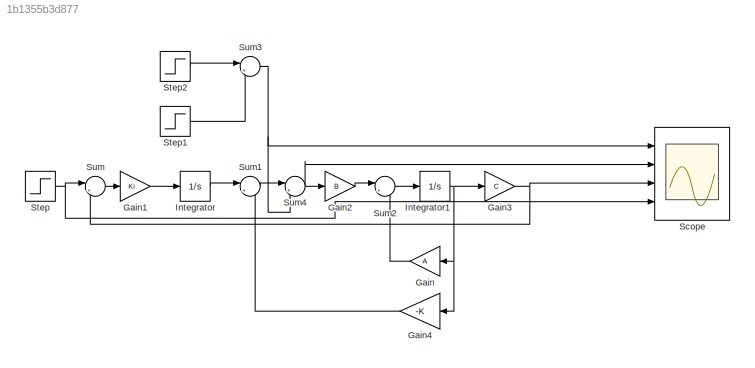
MODEL slx_1b1355b3d877
KIND model
CONFIG AbsTol = auto
CONFIG EnableMultiTasking = off
CONFIG FixedStep = auto
CONFIG MaxStep = auto
CONFIG MinStep = auto
CONFIG RelTol = 1e-3
CONFIG SampleTimeConstraint = Unconstrained
CONFIG SolverName = VariableStepAuto
CONFIG StartTime = 0.0
CONFIG StopTime = 20
BLOCK [Gain] Gain
  Gain = A
  Multiplication = Matrix(K*u)
  NameLocation = top
BLOCK [Gain] Gain1
  Gain = Ki
  Multiplication = Matrix(K*u)
BLOCK [Gain] Gain2
  Gain = B
  Multiplication = Matrix(K*u)
BLOCK [Gain] Gain3
  Gain = C
  Multiplication = Matrix(K*u)
BLOCK [Gain] Gain4
  Gain = -K
  Multiplication = Matrix(K*u)
  NameLocation = top
BLOCK [Integrator] Integrator
  Ports = [1, 1]
BLOCK [Integrator] Integrator1
  Ports = [1, 1]
BLOCK [Scope] Scope
  Floating = off
  NumInputPorts = 4
  Ports = [4]
  ScopeSpecificationString = Simulink.scopes.TimeScopeBlockCfg('CurrentConfiguration', extmgr.ConfigurationSet(extmgr.Configuration('Core','General UI',true,'FigureColor',[1 1 1]),extmgr.Configuration('Core','Source UI',true),extmgr.Configuration('Sources','WiredSimulink',true),extmgr.Configuration('Visuals','Time Domain',true,'SerializedDisplays',{struct('MinYLimReal','-0.22615','MaxYLimReal','2.03536','YLabelReal','Amplitud...<+1452ch>
BLOCK [Step] Step
  After = 0.6
  SampleTime = 0
BLOCK [Step] Step1
  After = 0.05
  SampleTime = 0
  Time = 17
BLOCK [Step] Step2
  After = 0.05
  SampleTime = 0
  Time = 15
BLOCK [Sum] Sum
  Inputs = |+-
  Ports = [2, 1]
BLOCK [Sum] Sum1
  Inputs = |++
  Ports = [2, 1]
BLOCK [Sum] Sum2
  Inputs = |++
  Ports = [2, 1]
BLOCK [Sum] Sum3
  Inputs = |+-
  Ports = [2, 1]
BLOCK [Sum] Sum4
  Inputs = |++
  Ports = [2, 1]
LINE Gain1:1 -> Integrator:1
LINE Gain2:1 -> Sum2:1
NET Gain3:1 -> Scope:3, Sum:2
LINE Gain4:1 -> Sum1:2
LINE Gain:1 -> Sum2:2
NET Integrator1:1 -> Gain3:1, Gain4:1, Gain:1
LINE Integrator:1 -> Sum1:1
LINE Step1:1 -> Sum3:2
LINE Step2:1 -> Sum3:1
NET Step:1 -> Scope:4, Sum:1
LINE Sum1:1 -> Sum4:1
LINE Sum2:1 -> Integrator1:1
NET Sum3:1 -> Scope:1, Sum4:2
NET Sum4:1 -> Gain2:1, Scope:2
LINE Sum:1 -> Gain1:1
note: NET lines group one-source signal fan-out (src -> all destinations, sorted); 1:1 wires keep LINE
